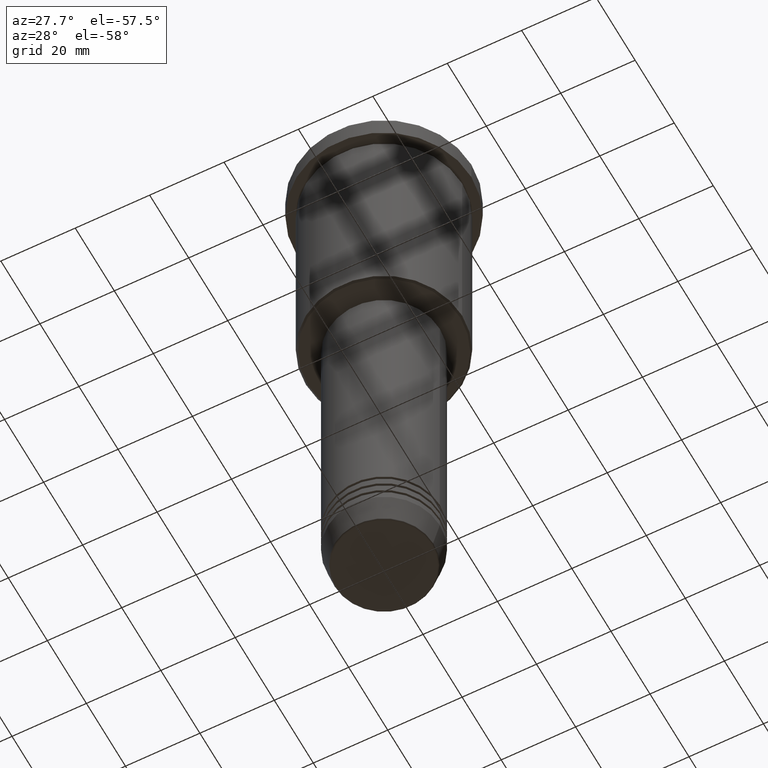
[diagram: clean part render]
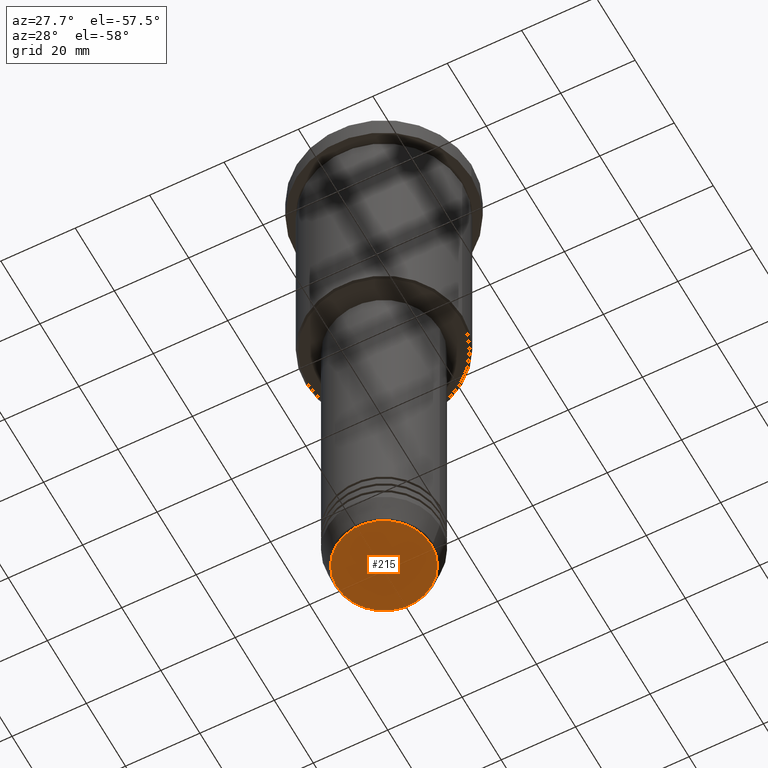
[diagram: same view with one face highlighted and labeled with its STEP entity id]
A machine part, auxiliary view. The second image highlights one B-rep face of the part: STEP entity #215.
In plain terms, the highlighted planar face has unit normal (0, -0, 1).
Its self-contained STEP definition (entity closure, byte-faithful):
#29 = DIRECTION ( 'NONE',  ( 0.000000000000000000, 0.000000000000000000, -1.000000000000000000 ) ) ;
#54 = VERTEX_POINT ( 'NONE', #1028 ) ;
#198 = DIRECTION ( 'NONE',  ( 1.000000000000000000, 0.000000000000000000, 0.000000000000000000 ) ) ;
#215 = ADVANCED_FACE ( 'NONE', ( #1044 ), #663, .F. ) ;
#277 = ORIENTED_EDGE ( 'NONE', *, *, #420, .T. ) ;
#333 = EDGE_LOOP ( 'NONE', ( #277, #575 ) ) ;
#338 = DIRECTION ( 'NONE',  ( 0.000000000000000000, 0.000000000000000000, -1.000000000000000000 ) ) ;
#356 = AXIS2_PLACEMENT_3D ( 'NONE', #681, #687, #397 ) ;
#369 = VERTEX_POINT ( 'NONE', #623 ) ;
#397 = DIRECTION ( 'NONE',  ( 1.000000000000000000, 0.000000000000000000, 0.000000000000000000 ) ) ;
#420 = EDGE_CURVE ( 'NONE', #54, #369, #1001, .T. ) ;
#449 = AXIS2_PLACEMENT_3D ( 'NONE', #1157, #338, #1066 ) ;
#575 = ORIENTED_EDGE ( 'NONE', *, *, #801, .T. ) ;
#623 = CARTESIAN_POINT ( 'NONE',  ( -12.74069215899266538, 1.589857736427681824E-15, -160.9999999999999716 ) ) ;
#663 = PLANE ( 'NONE',  #356 ) ;
#681 = CARTESIAN_POINT ( 'NONE',  ( 0.000000000000000000, 0.000000000000000000, -160.9999999999999716 ) ) ;
#687 = DIRECTION ( 'NONE',  ( 0.000000000000000000, -0.000000000000000000, 1.000000000000000000 ) ) ;
#708 = CIRCLE ( 'NONE', #449, 12.74069215899266538 ) ;
#801 = EDGE_CURVE ( 'NONE', #369, #54, #708, .T. ) ;
#1001 = CIRCLE ( 'NONE', #1172, 12.74069215899266538 ) ;
#1011 = CARTESIAN_POINT ( 'NONE',  ( 0.000000000000000000, 0.000000000000000000, -160.9999999999999716 ) ) ;
#1028 = CARTESIAN_POINT ( 'NONE',  ( 12.74069215899266538, 0.000000000000000000, -160.9999999999999716 ) ) ;
#1044 = FACE_OUTER_BOUND ( 'NONE', #333, .T. ) ;
#1066 = DIRECTION ( 'NONE',  ( 1.000000000000000000, 0.000000000000000000, 0.000000000000000000 ) ) ;
#1157 = CARTESIAN_POINT ( 'NONE',  ( 0.000000000000000000, 0.000000000000000000, -160.9999999999999716 ) ) ;
#1172 = AXIS2_PLACEMENT_3D ( 'NONE', #1011, #29, #198 ) ;